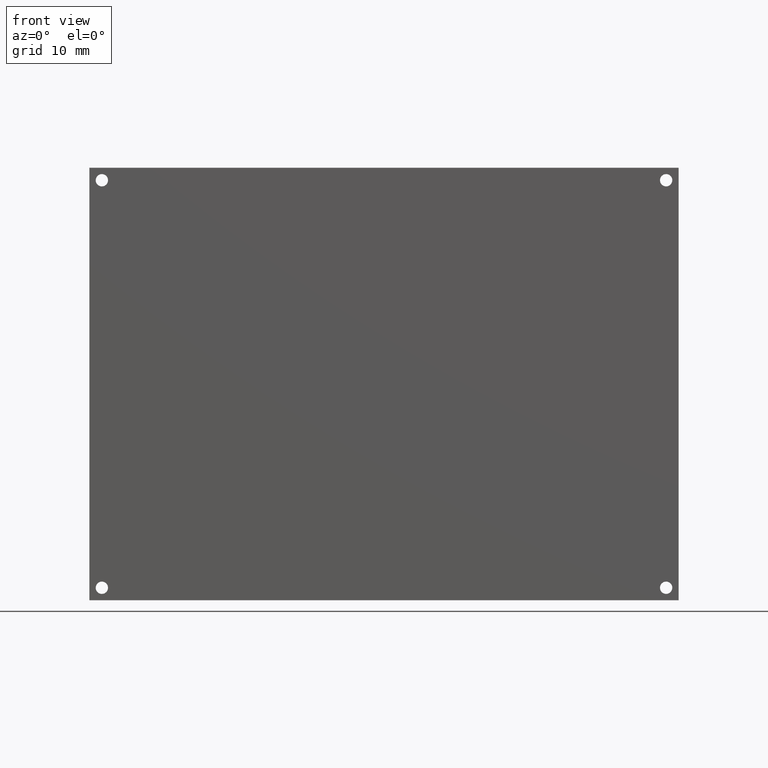
[diagram: clean part render]
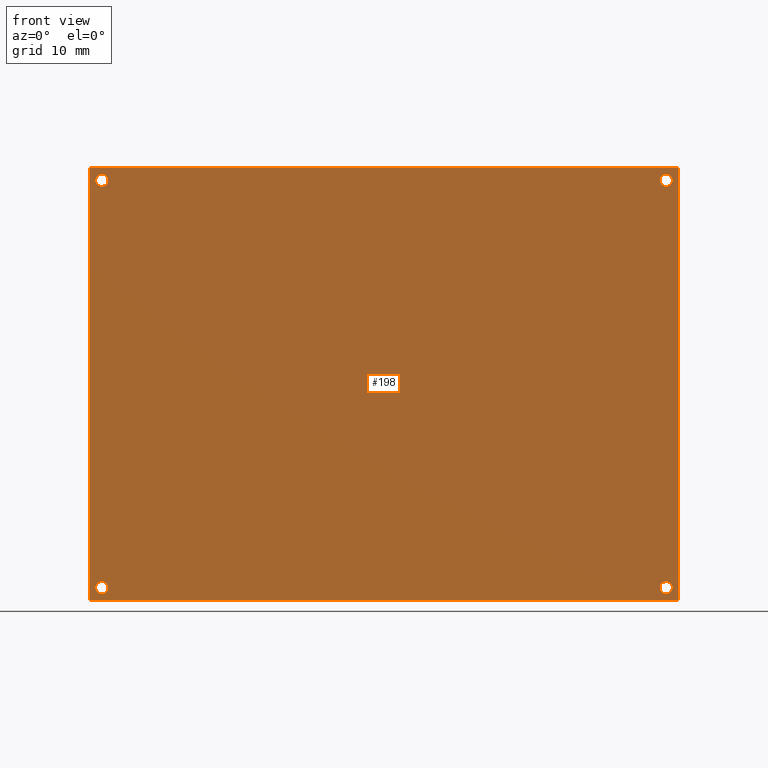
[diagram: same view with one face highlighted and labeled with its STEP entity id]
A machine part, front view. The second image highlights one B-rep face of the part: STEP entity #198.
In plain terms, the highlighted planar face has unit normal (0, 1, 0).
Its self-contained STEP definition (entity closure, byte-faithful):
#19=FACE_BOUND('',#53,.T.);
#20=FACE_BOUND('',#54,.T.);
#21=FACE_BOUND('',#55,.T.);
#22=FACE_BOUND('',#56,.T.);
#28=PLANE('',#230);
#38=FACE_OUTER_BOUND('',#52,.T.);
#52=EDGE_LOOP('',(#177,#178,#179,#180));
#53=EDGE_LOOP('',(#181));
#54=EDGE_LOOP('',(#182));
#55=EDGE_LOOP('',(#183));
#56=EDGE_LOOP('',(#184));
#61=LINE('',#313,#77);
#65=LINE('',#321,#81);
#68=LINE('',#327,#84);
#71=LINE('',#332,#87);
#77=VECTOR('',#263,0.393700787401575);
#81=VECTOR('',#269,0.393700787401575);
#84=VECTOR('',#274,0.393700787401575);
#87=VECTOR('',#279,0.393700787401575);
#89=CIRCLE('',#214,0.0393700787401575);
#91=CIRCLE('',#217,0.0393700787401573);
#93=CIRCLE('',#220,0.0393700787401573);
#95=CIRCLE('',#223,0.0393700787401575);
#97=VERTEX_POINT('',#287);
#99=VERTEX_POINT('',#293);
#101=VERTEX_POINT('',#299);
#103=VERTEX_POINT('',#305);
#105=VERTEX_POINT('',#311);
#106=VERTEX_POINT('',#312);
#109=VERTEX_POINT('',#320);
#111=VERTEX_POINT('',#326);
#113=EDGE_CURVE('',#97,#97,#89,.T.);
#116=EDGE_CURVE('',#99,#99,#91,.T.);
#119=EDGE_CURVE('',#101,#101,#93,.T.);
#122=EDGE_CURVE('',#103,#103,#95,.T.);
#125=EDGE_CURVE('',#105,#106,#61,.T.);
#129=EDGE_CURVE('',#109,#105,#65,.T.);
#132=EDGE_CURVE('',#111,#109,#68,.T.);
#135=EDGE_CURVE('',#106,#111,#71,.T.);
#177=ORIENTED_EDGE('',*,*,#135,.F.);
#178=ORIENTED_EDGE('',*,*,#125,.F.);
#179=ORIENTED_EDGE('',*,*,#129,.F.);
#180=ORIENTED_EDGE('',*,*,#132,.F.);
#181=ORIENTED_EDGE('',*,*,#122,.F.);
#182=ORIENTED_EDGE('',*,*,#119,.F.);
#183=ORIENTED_EDGE('',*,*,#116,.F.);
#184=ORIENTED_EDGE('',*,*,#113,.F.);
#198=ADVANCED_FACE('',(#38,#19,#20,#21,#22),#28,.F.);
#214=AXIS2_PLACEMENT_3D('',#288,#235,#236);
#217=AXIS2_PLACEMENT_3D('',#294,#242,#243);
#220=AXIS2_PLACEMENT_3D('',#300,#249,#250);
#223=AXIS2_PLACEMENT_3D('',#306,#256,#257);
#230=AXIS2_PLACEMENT_3D('',#335,#283,#284);
#235=DIRECTION('center_axis',(0.,-1.,0.));
#236=DIRECTION('ref_axis',(-1.,0.,0.));
#242=DIRECTION('center_axis',(0.,-1.,0.));
#243=DIRECTION('ref_axis',(-1.,0.,0.));
#249=DIRECTION('center_axis',(0.,-1.,0.));
#250=DIRECTION('ref_axis',(-1.,0.,0.));
#256=DIRECTION('center_axis',(0.,-1.,0.));
#257=DIRECTION('ref_axis',(-1.,0.,0.));
#263=DIRECTION('',(-1.,0.,-9.29990806353792E-17));
#269=DIRECTION('',(0.,0.,-1.));
#274=DIRECTION('',(1.,0.,-4.64995403176896E-17));
#279=DIRECTION('',(-2.37551999449066E-17,0.,1.));
#283=DIRECTION('center_axis',(0.,1.,0.));
#284=DIRECTION('ref_axis',(-1.,0.,0.));
#287=CARTESIAN_POINT('',(0.239370085123017,0.26,-2.80000008936003));
#288=CARTESIAN_POINT('Origin',(0.20000000638286,0.26,-2.80000008936003));
#293=CARTESIAN_POINT('',(3.8393700723573,0.26,-0.20000000638286));
#294=CARTESIAN_POINT('Origin',(3.79999999361714,0.26,-0.20000000638286));
#299=CARTESIAN_POINT('',(3.8393700723573,0.26,-2.80000008936003));
#300=CARTESIAN_POINT('Origin',(3.79999999361714,0.26,-2.80000008936003));
#305=CARTESIAN_POINT('',(0.239370085123017,0.26,-0.20000000638286));
#306=CARTESIAN_POINT('Origin',(0.20000000638286,0.26,-0.20000000638286));
#311=CARTESIAN_POINT('',(3.88,0.26,-2.88));
#312=CARTESIAN_POINT('',(0.12,0.26,-2.88));
#313=CARTESIAN_POINT('',(3.88,0.26,-2.88));
#320=CARTESIAN_POINT('',(3.88,0.26,-0.12));
#321=CARTESIAN_POINT('',(3.88,0.26,-0.12));
#326=CARTESIAN_POINT('',(0.12,0.26,-0.12));
#327=CARTESIAN_POINT('',(0.12,0.26,-0.12));
#332=CARTESIAN_POINT('',(0.12,0.26,-2.88));
#335=CARTESIAN_POINT('Origin',(2.,0.26,-1.5));